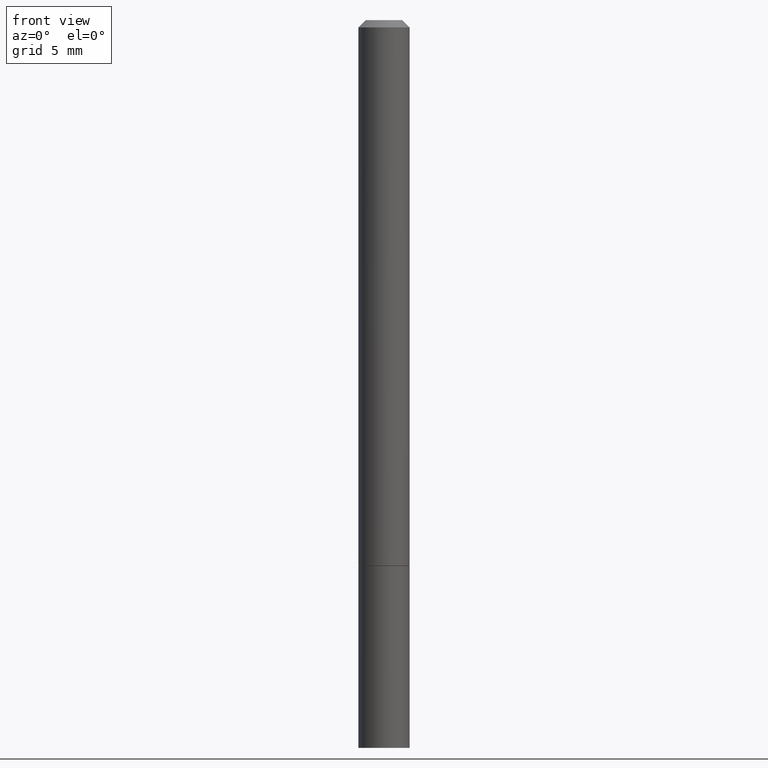
[diagram: clean part render]
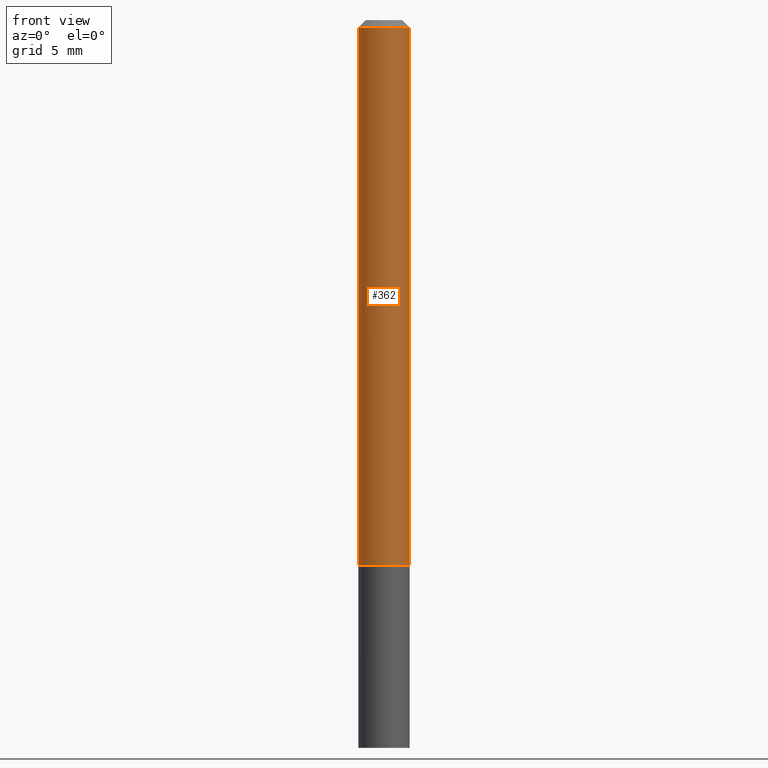
[diagram: same view with one face highlighted and labeled with its STEP entity id]
A machine part, front view. The second image highlights one B-rep face of the part: STEP entity #362.
In plain terms, the highlighted cylindrical surface (edge-blend (fillet) strip) has radius 1.7856 mm, axis along (-0, 0, 1).
Its self-contained STEP definition (entity closure, byte-faithful):
#4 = VERTEX_POINT ( 'NONE', #78 ) ;
#12 = DIRECTION ( 'NONE',  ( 1.000000000000000000, -6.982962677686267499E-15, 0.000000000000000000 ) ) ;
#42 = DIRECTION ( 'NONE',  ( 1.000000000000000000, -6.982962677686265133E-15, 0.000000000000000000 ) ) ;
#46 = EDGE_CURVE ( 'NONE', #4, #220, #171, .T. ) ;
#47 = CYLINDRICAL_SURFACE ( 'NONE', #247, 0.07029999999999990423 ) ;
#55 = FACE_OUTER_BOUND ( 'NONE', #70, .T. ) ;
#56 = CARTESIAN_POINT ( 'NONE',  ( 0.07029999999999980709, -5.521226360202004844E-16, -0.02000000000000004205 ) ) ;
#70 = EDGE_LOOP ( 'NONE', ( #71, #106, #183, #151 ) ) ;
#71 = ORIENTED_EDGE ( 'NONE', *, *, #159, .F. ) ;
#78 = CARTESIAN_POINT ( 'NONE',  ( -0.07030000000000000138, -2.152268533612014652E-15, -1.498999999999999444 ) ) ;
#84 = CARTESIAN_POINT ( 'NONE',  ( 0.000000000000000000, 0.000000000000000000, 0.000000000000000000 ) ) ;
#90 = CIRCLE ( 'NONE', #337, 0.07029999999999980709 ) ;
#106 = ORIENTED_EDGE ( 'NONE', *, *, #46, .T. ) ;
#141 = LINE ( 'NONE', #370, #310 ) ;
#151 = ORIENTED_EDGE ( 'NONE', *, *, #341, .F. ) ;
#159 = EDGE_CURVE ( 'NONE', #4, #230, #141, .T. ) ;
#166 = DIRECTION ( 'NONE',  ( -2.445468806185136597E-29, 3.491481338843145583E-15, 1.000000000000000000 ) ) ;
#171 = CIRCLE ( 'NONE', #176, 0.07030000000000000138 ) ;
#176 = AXIS2_PLACEMENT_3D ( 'NONE', #322, #166, #42 ) ;
#183 = ORIENTED_EDGE ( 'NONE', *, *, #215, .T. ) ;
#192 = CARTESIAN_POINT ( 'NONE',  ( 0.07029999999999990423, -4.909022762413438627E-16, 3.427952273384538232E-30 ) ) ;
#195 = LINE ( 'NONE', #192, #355 ) ;
#203 = CARTESIAN_POINT ( 'NONE',  ( 0.07030000000000000138, -5.724632803167218539E-15, -1.498999999999999444 ) ) ;
#215 = EDGE_CURVE ( 'NONE', #220, #233, #195, .T. ) ;
#220 = VERTEX_POINT ( 'NONE', #203 ) ;
#223 = DIRECTION ( 'NONE',  ( -2.445468806185136597E-29, 3.491481338843145583E-15, 1.000000000000000000 ) ) ;
#230 = VERTEX_POINT ( 'NONE', #327 ) ;
#233 = VERTEX_POINT ( 'NONE', #56 ) ;
#247 = AXIS2_PLACEMENT_3D ( 'NONE', #84, #373, #291 ) ;
#262 = DIRECTION ( 'NONE',  ( -2.445468806185136877E-29, 3.491481338843145188E-15, 1.000000000000000000 ) ) ;
#291 = DIRECTION ( 'NONE',  ( 1.000000000000000000, -6.982962677686266711E-15, 4.876176775795935793E-29 ) ) ;
#292 = DIRECTION ( 'NONE',  ( -2.445468806185136877E-29, 3.491481338843145188E-15, 1.000000000000000000 ) ) ;
#310 = VECTOR ( 'NONE', #262, 39.37007874015748143 ) ;
#322 = CARTESIAN_POINT ( 'NONE',  ( 3.665757740471518171E-29, -5.233730526925873592E-15, -1.498999999999999444 ) ) ;
#327 = CARTESIAN_POINT ( 'NONE',  ( -0.07029999999999980709, 4.210726494644801207E-16, -0.02000000000000004205 ) ) ;
#337 = AXIS2_PLACEMENT_3D ( 'NONE', #369, #223, #12 ) ;
#341 = EDGE_CURVE ( 'NONE', #230, #233, #90, .T. ) ;
#355 = VECTOR ( 'NONE', #292, 39.37007874015748143 ) ;
#362 = ADVANCED_FACE ( 'NONE', ( #55 ), #47, .T. ) ;
#369 = CARTESIAN_POINT ( 'NONE',  ( 4.890937612370283668E-31, -6.982962677686305168E-17, -0.02000000000000004205 ) ) ;
#370 = CARTESIAN_POINT ( 'NONE',  ( -0.07029999999999990423, 4.995115432393497502E-16, -3.458011368449193965E-30 ) ) ;
#373 = DIRECTION ( 'NONE',  ( -2.445468806185136597E-29, 3.491481338843145583E-15, 1.000000000000000000 ) ) ;